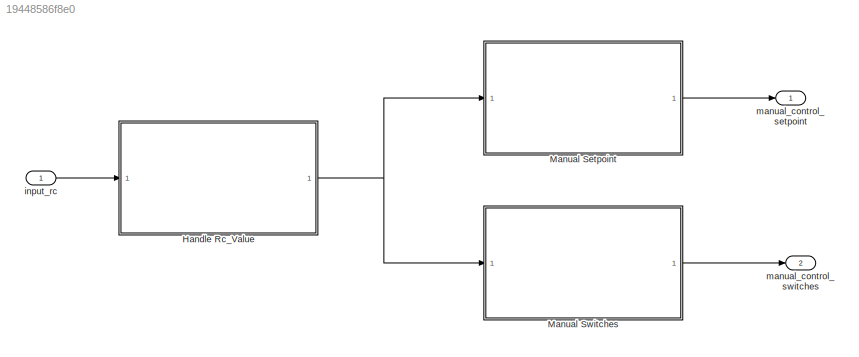
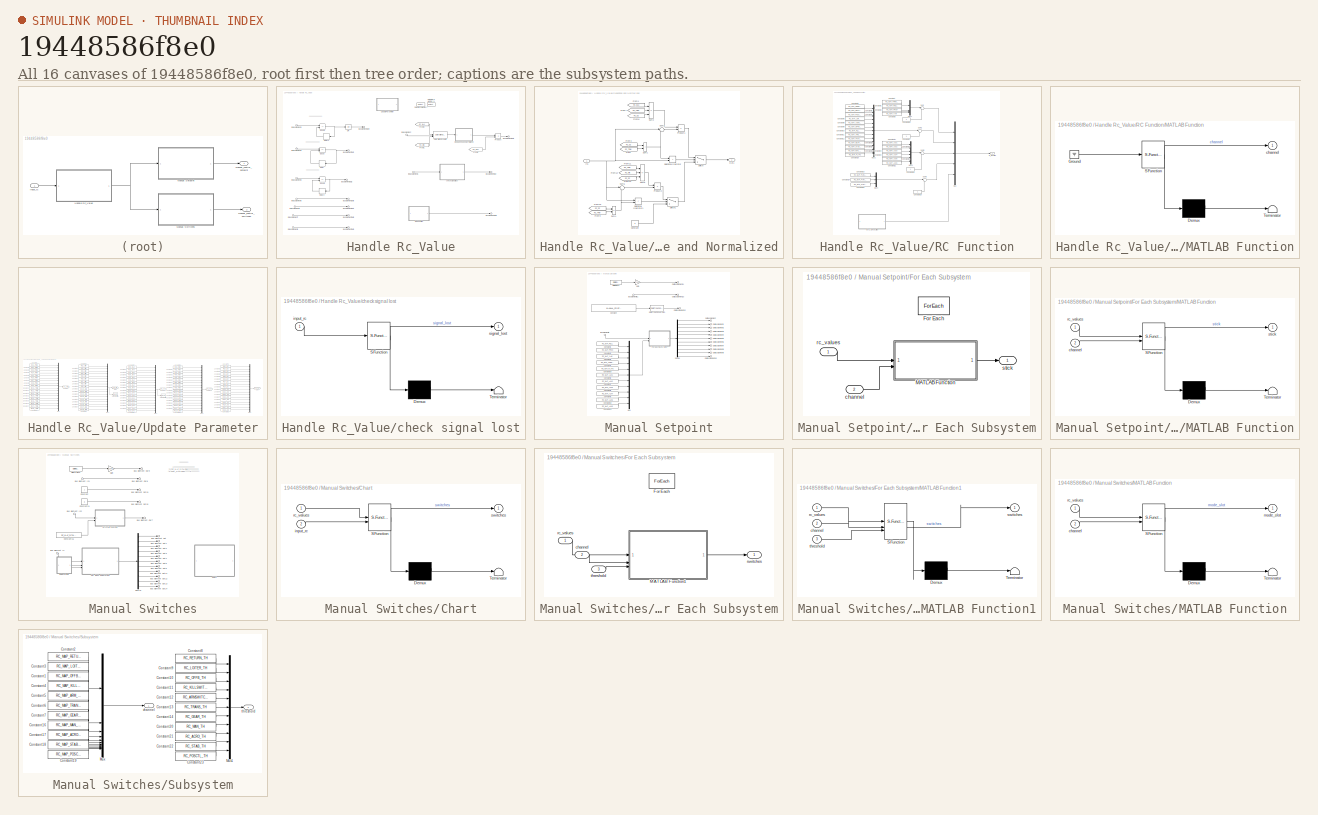
[diagram: thumbnail index - all 16 canvases of the model, root first then tree order]
MODEL slx_19448586f8e0
KIND model
CONFIG AbsTol = auto
CONFIG EnableMultiTasking = off
CONFIG FixedStep = 0.005
CONFIG MaxStep = auto
CONFIG MinStep = auto
CONFIG RelTol = 1e-3
CONFIG SampleTimeConstraint = Unconstrained
CONFIG SolverName = FixedStepAuto
CONFIG StartTime = 0.0
CONFIG StopTime = 10.0
BLOCK [SubSystem] Handle Rc_Value
BLOCK [Outport] Handle Rc_Value/Bus Element Out
BLOCK [Outport] Handle Rc_Value/Bus Element Out1
BLOCK [Outport] Handle Rc_Value/Bus Element Out2
BLOCK [Outport] Handle Rc_Value/Bus Element Out3
BLOCK [Outport] Handle Rc_Value/Bus Element Out4
BLOCK [Outport] Handle Rc_Value/Bus Element Out5
BLOCK [Outport] Handle Rc_Value/Bus Element Out6
BLOCK [Outport] Handle Rc_Value/Bus Element Out7
BLOCK [Outport] Handle Rc_Value/Bus Element Out8
BLOCK [Outport] Handle Rc_Value/Bus Element Out9
BLOCK [DataStoreMemory] Handle Rc_Value/Data Store Memory
  DataStoreName = RC_MAX
  Dimensions = 18
  OutDataTypeStr = single
  ShowAdditionalParam = off
  SignalType = real
  WriteAfterWriteMsg = warning
BLOCK [DataStoreMemory] Handle Rc_Value/Data Store Memory1
  DataStoreName = RC_MIN
  Dimensions = 18
  OutDataTypeStr = single
  ShowAdditionalParam = off
  SignalType = real
  WriteAfterWriteMsg = warning
BLOCK [SubSystem] Handle Rc_Value/DeadZone and Normalized
BLOCK [Constant] Handle Rc_Value/DeadZone and Normalized/Constant
  OutDataTypeStr = single
  Value = 0
BLOCK [From] Handle Rc_Value/DeadZone and Normalized/From
  GotoTag = RC_TRIM
  TagVisibility = global
BLOCK [From] Handle Rc_Value/DeadZone and Normalized/From10
  GotoTag = RC_DZ
  TagVisibility = global
BLOCK [From] Handle Rc_Value/DeadZone and Normalized/From11
  GotoTag = RC_TRIM
  TagVisibility = global
BLOCK [From] Handle Rc_Value/DeadZone and Normalized/From12
  GotoTag = RC_MIN
  TagVisibility = global
BLOCK [From] Handle Rc_Value/DeadZone and Normalized/From13
  GotoTag = RC_DZ
  TagVisibility = global
BLOCK [From] Handle Rc_Value/DeadZone and Normalized/From3
  GotoTag = RC_DZ
  TagVisibility = global
BLOCK [From] Handle Rc_Value/DeadZone and Normalized/From4
  GotoTag = RC_MAX
  TagVisibility = global
BLOCK [From] Handle Rc_Value/DeadZone and Normalized/From7
  GotoTag = RC_TRIM
  TagVisibility = global
BLOCK [From] Handle Rc_Value/DeadZone and Normalized/From8
  GotoTag = RC_DZ
  TagVisibility = global
BLOCK [From] Handle Rc_Value/DeadZone and Normalized/From9
  GotoTag = RC_TRIM
  TagVisibility = global
BLOCK [Inport] Handle Rc_Value/DeadZone and Normalized/In1
BLOCK [Outport] Handle Rc_Value/DeadZone and Normalized/Out1
BLOCK [Product] Handle Rc_Value/DeadZone and Normalized/Product1
  Inputs = /*
BLOCK [Product] Handle Rc_Value/DeadZone and Normalized/Product2
  Inputs = /*
BLOCK [RelationalOperator] Handle Rc_Value/DeadZone and Normalized/Relational Operator
  InputSameDT = off
  Operator = <
  OutDataTypeStr = boolean
  RndMeth = Simplest
BLOCK [RelationalOperator] Handle Rc_Value/DeadZone and Normalized/Relational Operator1
  InputSameDT = off
  Operator = <
  OutDataTypeStr = boolean
  RndMeth = Simplest
BLOCK [Sum] Handle Rc_Value/DeadZone and Normalized/Sum1
  IconShape = rectangular
  Inputs = 2
BLOCK [Sum] Handle Rc_Value/DeadZone and Normalized/Sum2
  Inputs = |+-
BLOCK [Sum] Handle Rc_Value/DeadZone and Normalized/Sum3
  IconShape = rectangular
  Inputs = +--
BLOCK [Sum] Handle Rc_Value/DeadZone and Normalized/Sum4
  IconShape = rectangular
  Inputs = -+
BLOCK [Sum] Handle Rc_Value/DeadZone and Normalized/Sum5
  Inputs = |+-
BLOCK [Sum] Handle Rc_Value/DeadZone and Normalized/Sum6
  IconShape = rectangular
  Inputs = +--
BLOCK [Switch] Handle Rc_Value/DeadZone and Normalized/Switch
  Criteria = u2 > Threshold
  InputSameDT = off
  SaturateOnIntegerOverflow = off
BLOCK [Switch] Handle Rc_Value/DeadZone and Normalized/Switch1
  Criteria = u2 > Threshold
  InputSameDT = off
  SaturateOnIntegerOverflow = off
BLOCK [Delay] Handle Rc_Value/Delay
  DelayLength = 1
  InputPortMap = u0
  NameLocation = top
BLOCK [Delay] Handle Rc_Value/Delay1
  DelayLength = 1
  InputPortMap = u0
  NameLocation = top
BLOCK [Delay] Handle Rc_Value/Delay2
  DelayLength = 1
  InputPortMap = u0
  NameLocation = top
BLOCK [RelationalOperator] Handle Rc_Value/Equal
  InputSameDT = off
  Operator = ==
  OutDataTypeStr = boolean
  RndMeth = Simplest
BLOCK [RelationalOperator] Handle Rc_Value/Equal1
  InputSameDT = off
  Operator = ==
  OutDataTypeStr = boolean
  RndMeth = Simplest
BLOCK [RelationalOperator] Handle Rc_Value/Equal2
  InputSameDT = off
  Operator = ~=
  OutDataTypeStr = boolean
  RndMeth = Simplest
BLOCK [From] Handle Rc_Value/From1
  GotoTag = RC_MIN
  TagVisibility = global
BLOCK [From] Handle Rc_Value/From2
  GotoTag = RC_MAX
  TagVisibility = global
BLOCK [From] Handle Rc_Value/From5
  GotoTag = RC_REV
  TagVisibility = global
BLOCK [Inport] Handle Rc_Value/In Bus Element
BLOCK [Inport] Handle Rc_Value/In Bus Element1
BLOCK [Inport] Handle Rc_Value/In Bus Element2
BLOCK [Inport] Handle Rc_Value/In Bus Element3
BLOCK [Inport] Handle Rc_Value/In Bus Element4
BLOCK [Inport] Handle Rc_Value/In Bus Element5
BLOCK [Inport] Handle Rc_Value/In Bus Element6
BLOCK [Inport] Handle Rc_Value/In Bus Element7
BLOCK [Inport] Handle Rc_Value/In Bus Element8
BLOCK [Logic] Handle Rc_Value/OR
  AllPortsSameDT = off
  IconShape = distinctive
  Inputs = 1
  Operator = OR
  OutDataTypeStr = boolean
BLOCK [Product] Handle Rc_Value/Product
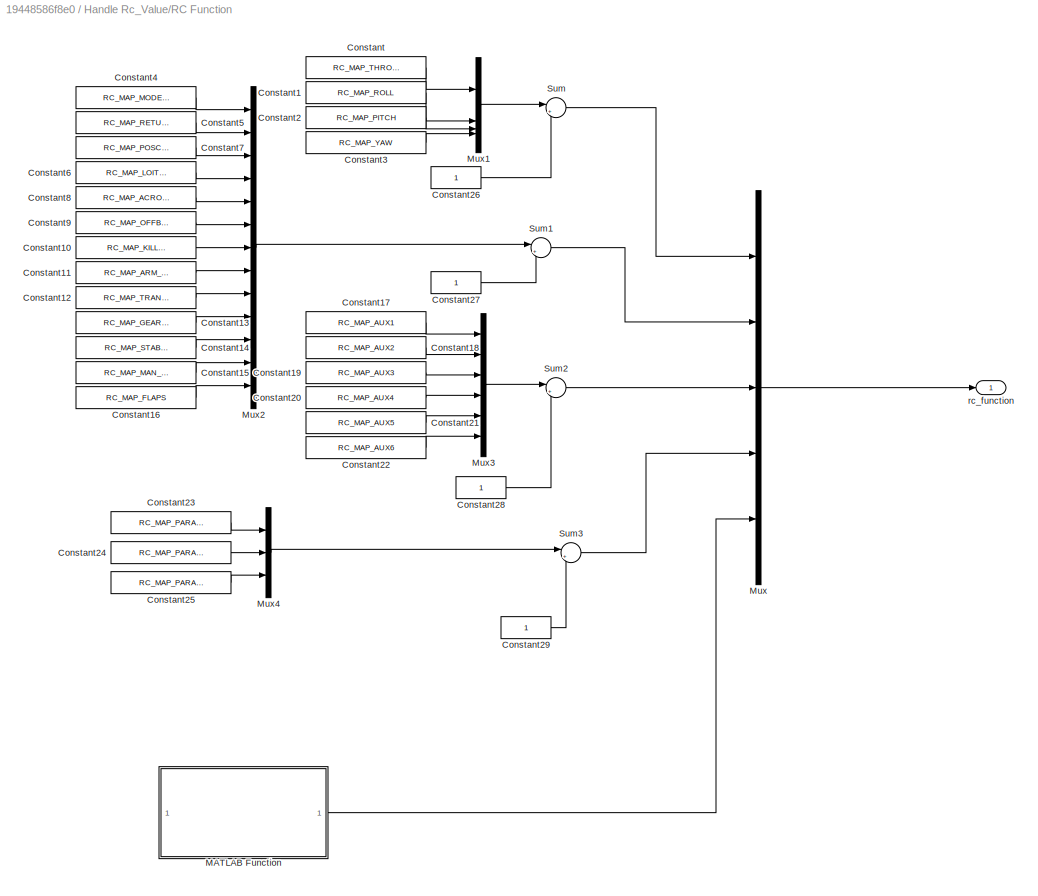
BLOCK [SubSystem] Handle Rc_Value/RC Function
BLOCK [Constant] Handle Rc_Value/RC Function/Constant
  Value = RC_MAP_THROTTLE
BLOCK [Constant] Handle Rc_Value/RC Function/Constant1
  Value = RC_MAP_ROLL
BLOCK [Constant] Handle Rc_Value/RC Function/Constant10
  Value = RC_MAP_KILL_SW
BLOCK [Constant] Handle Rc_Value/RC Function/Constant11
  Value = RC_MAP_ARM_SW
BLOCK [Constant] Handle Rc_Value/RC Function/Constant12
  Value = RC_MAP_TRANS_SW
BLOCK [Constant] Handle Rc_Value/RC Function/Constant13
  Value = RC_MAP_GEAR_SW
BLOCK [Constant] Handle Rc_Value/RC Function/Constant14
  Value = RC_MAP_STAB_SW
BLOCK [Constant] Handle Rc_Value/RC Function/Constant15
  Value = RC_MAP_MAN_SW
BLOCK [Constant] Handle Rc_Value/RC Function/Constant16
  Value = RC_MAP_FLAPS
BLOCK [Constant] Handle Rc_Value/RC Function/Constant17
  Value = RC_MAP_AUX1
BLOCK [Constant] Handle Rc_Value/RC Function/Constant18
  Value = RC_MAP_AUX2
BLOCK [Constant] Handle Rc_Value/RC Function/Constant19
  Value = RC_MAP_AUX3
BLOCK [Constant] Handle Rc_Value/RC Function/Constant2
  Value = RC_MAP_PITCH
BLOCK [Constant] Handle Rc_Value/RC Function/Constant20
  Value = RC_MAP_AUX4
BLOCK [Constant] Handle Rc_Value/RC Function/Constant21
  Value = RC_MAP_AUX5
BLOCK [Constant] Handle Rc_Value/RC Function/Constant22
  Value = RC_MAP_AUX6
BLOCK [Constant] Handle Rc_Value/RC Function/Constant23
  Value = RC_MAP_PARAM1
BLOCK [Constant] Handle Rc_Value/RC Function/Constant24
  Value = RC_MAP_PARAM2
BLOCK [Constant] Handle Rc_Value/RC Function/Constant25
  Value = RC_MAP_PARAM3
BLOCK [Constant] Handle Rc_Value/RC Function/Constant26
  OutDataTypeStr = int8
BLOCK [Constant] Handle Rc_Value/RC Function/Constant27
  OutDataTypeStr = int8
BLOCK [Constant] Handle Rc_Value/RC Function/Constant28
  OutDataTypeStr = int8
BLOCK [Constant] Handle Rc_Value/RC Function/Constant29
  OutDataTypeStr = int8
BLOCK [Constant] Handle Rc_Value/RC Function/Constant3
  Value = RC_MAP_YAW
BLOCK [Constant] Handle Rc_Value/RC Function/Constant4
  Value = RC_MAP_MODE_SW
BLOCK [Constant] Handle Rc_Value/RC Function/Constant5
  Value = RC_MAP_RETURN_SW
BLOCK [Constant] Handle Rc_Value/RC Function/Constant6
  Value = RC_MAP_LOITER_SW
BLOCK [Constant] Handle Rc_Value/RC Function/Constant7
  Value = RC_MAP_POSCTL_SW
BLOCK [Constant] Handle Rc_Value/RC Function/Constant8
  Value = RC_MAP_ACRO_SW
BLOCK [Constant] Handle Rc_Value/RC Function/Constant9
  Value = RC_MAP_OFFB_SW
BLOCK [SubSystem] Handle Rc_Value/RC Function/MATLAB Function
  Commented = on
  ErrorFcn = Stateflow.Translate.translate
  PermitHierarchicalResolution = ExplicitOnly
  SFBlockType = MATLAB Function
  TreatAsAtomicUnit = on
BLOCK [Demux] Handle Rc_Value/RC Function/MATLAB Function/ Demux 
  Outputs = 1
BLOCK [Ground] Handle Rc_Value/RC Function/MATLAB Function/ Ground 
BLOCK [S-Function] Handle Rc_Value/RC Function/MATLAB Function/ SFunction 
  EnableBusSupport = on
  FunctionName = sf_sfun
  Parameters = RC_MAP_FLTM_BTN
  PortCounts = [1 2]
  SFcnIsStateOwnerBlock = off
  SFunctionDeploymentMode = off
  Tag = Stateflow S-Function 4
BLOCK [Terminator] Handle Rc_Value/RC Function/MATLAB Function/ Terminator 
BLOCK [Outport] Handle Rc_Value/RC Function/MATLAB Function/channel
BLOCK [Mux] Handle Rc_Value/RC Function/Mux
  DisplayOption = bar
  Inputs = 5
BLOCK [Mux] Handle Rc_Value/RC Function/Mux1
  DisplayOption = bar
BLOCK [Mux] Handle Rc_Value/RC Function/Mux2
  DisplayOption = bar
  Inputs = 13
BLOCK [Mux] Handle Rc_Value/RC Function/Mux3
  DisplayOption = bar
  Inputs = 6
BLOCK [Mux] Handle Rc_Value/RC Function/Mux4
  DisplayOption = bar
  Inputs = 3
BLOCK [Sum] Handle Rc_Value/RC Function/Sum
  Inputs = |+-
  OutDataTypeStr = int8
BLOCK [Sum] Handle Rc_Value/RC Function/Sum1
  Inputs = |+-
  OutDataTypeStr = int8
BLOCK [Sum] Handle Rc_Value/RC Function/Sum2
  Inputs = |+-
  OutDataTypeStr = int8
BLOCK [Sum] Handle Rc_Value/RC Function/Sum3
  Inputs = |+-
  OutDataTypeStr = int8
BLOCK [Outport] Handle Rc_Value/RC Function/rc_function
BLOCK [Reference] Handle Rc_Value/Saturation Dynamic  REF=simulink/Discontinuities/Saturation
Dynamic
  SourceBlock = simulink/Discontinuities/Saturation\nDynamic
  SourceType = Saturation Dynamic
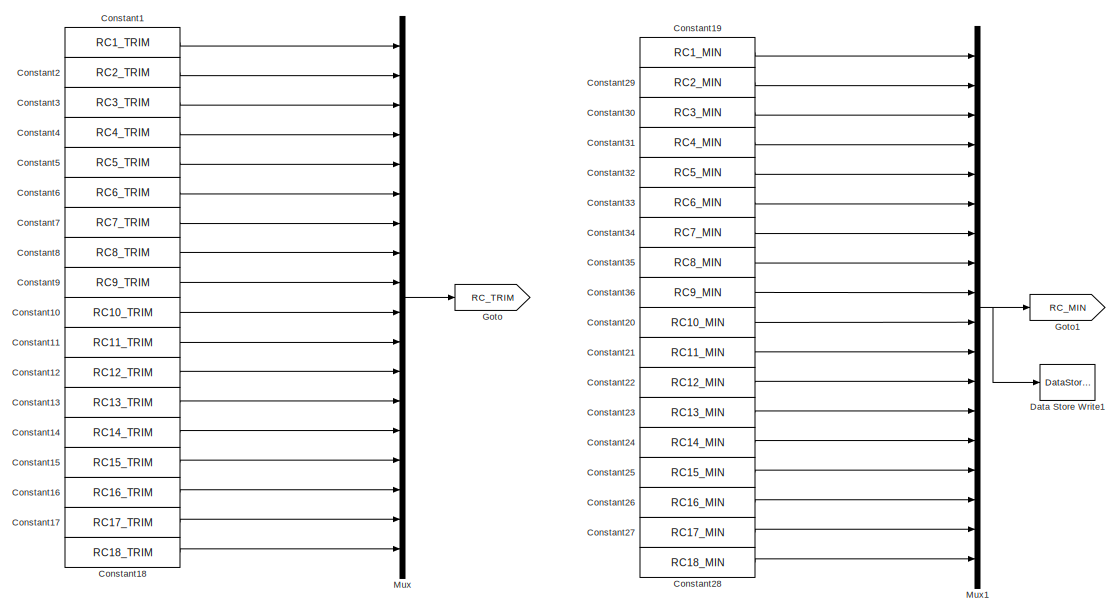
[diagram: Handle Rc_Value/Update Parameter - part 1/3, left side, full height]
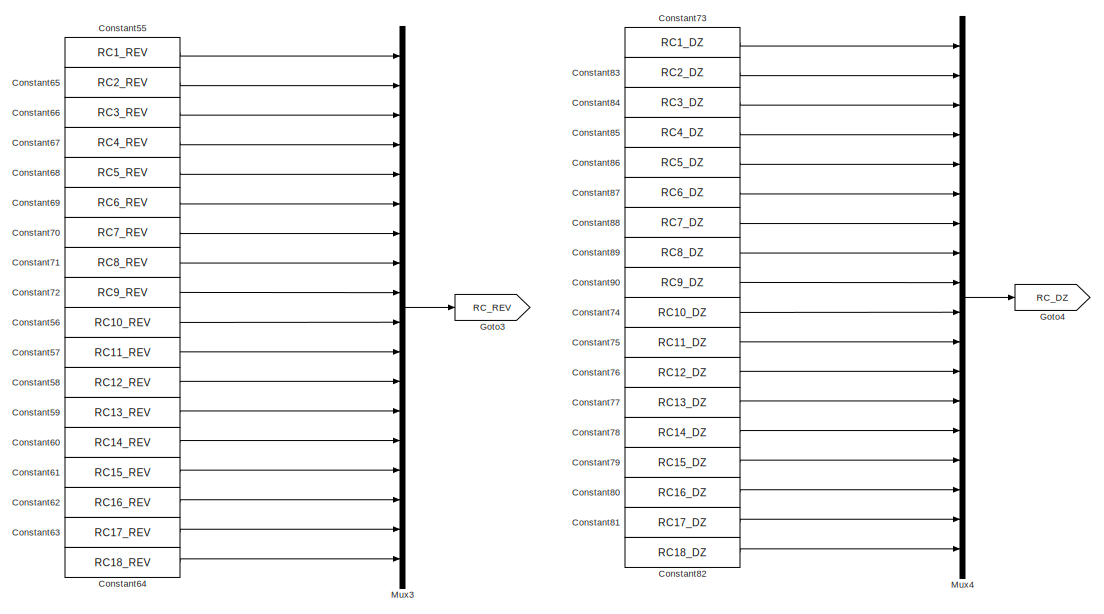
[diagram: Handle Rc_Value/Update Parameter - part 2/3, right side, full height]
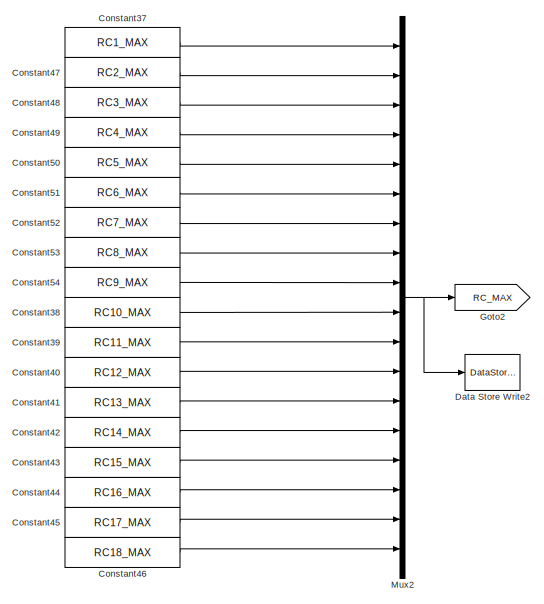
[diagram: Handle Rc_Value/Update Parameter - part 3/3, center side, full height]
BLOCK [SubSystem] Handle Rc_Value/Update Parameter
BLOCK [Constant] Handle Rc_Value/Update Parameter/Constant1
  Value = RC1_TRIM
BLOCK [Constant] Handle Rc_Value/Update Parameter/Constant10
  Value = RC10_TRIM
BLOCK [Constant] Handle Rc_Value/Update Parameter/Constant11
  Value = RC11_TRIM
BLOCK [Constant] Handle Rc_Value/Update Parameter/Constant12
  Value = RC12_TRIM
BLOCK [Constant] Handle Rc_Value/Update Parameter/Constant13
  Value = RC13_TRIM
BLOCK [Constant] Handle Rc_Value/Update Parameter/Constant14
  Value = RC14_TRIM
BLOCK [Constant] Handle Rc_Value/Update Parameter/Constant15
  Value = RC15_TRIM
BLOCK [Constant] Handle Rc_Value/Update Parameter/Constant16
  Value = RC16_TRIM
BLOCK [Constant] Handle Rc_Value/Update Parameter/Constant17
  Value = RC17_TRIM
BLOCK [Constant] Handle Rc_Value/Update Parameter/Constant18
  Value = RC18_TRIM
BLOCK [Constant] Handle Rc_Value/Update Parameter/Constant19
  Value = RC1_MIN
BLOCK [Constant] Handle Rc_Value/Update Parameter/Constant2
  Value = RC2_TRIM
BLOCK [Constant] Handle Rc_Value/Update Parameter/Constant20
  Value = RC10_MIN
BLOCK [Constant] Handle Rc_Value/Update Parameter/Constant21
  Value = RC11_MIN
BLOCK [Constant] Handle Rc_Value/Update Parameter/Constant22
  Value = RC12_MIN
BLOCK [Constant] Handle Rc_Value/Update Parameter/Constant23
  Value = RC13_MIN
BLOCK [Constant] Handle Rc_Value/Update Parameter/Constant24
  Value = RC14_MIN
BLOCK [Constant] Handle Rc_Value/Update Parameter/Constant25
  Value = RC15_MIN
BLOCK [Constant] Handle Rc_Value/Update Parameter/Constant26
  Value = RC16_MIN
BLOCK [Constant] Handle Rc_Value/Update Parameter/Constant27
  Value = RC17_MIN
BLOCK [Constant] Handle Rc_Value/Update Parameter/Constant28
  Value = RC18_MIN
BLOCK [Constant] Handle Rc_Value/Update Parameter/Constant29
  Value = RC2_MIN
BLOCK [Constant] Handle Rc_Value/Update Parameter/Constant3
  Value = RC3_TRIM
BLOCK [Constant] Handle Rc_Value/Update Parameter/Constant30
  Value = RC3_MIN
BLOCK [Constant] Handle Rc_Value/Update Parameter/Constant31
  Value = RC4_MIN
BLOCK [Constant] Handle Rc_Value/Update Parameter/Constant32
  Value = RC5_MIN
BLOCK [Constant] Handle Rc_Value/Update Parameter/Constant33
  Value = RC6_MIN
BLOCK [Constant] Handle Rc_Value/Update Parameter/Constant34
  Value = RC7_MIN
BLOCK [Constant] Handle Rc_Value/Update Parameter/Constant35
  Value = RC8_MIN
BLOCK [Constant] Handle Rc_Value/Update Parameter/Constant36
  Value = RC9_MIN
BLOCK [Constant] Handle Rc_Value/Update Parameter/Constant37
  Value = RC1_MAX
BLOCK [Constant] Handle Rc_Value/Update Parameter/Constant38
  Value = RC10_MAX
BLOCK [Constant] Handle Rc_Value/Update Parameter/Constant39
  Value = RC11_MAX
BLOCK [Constant] Handle Rc_Value/Update Parameter/Constant4
  Value = RC4_TRIM
BLOCK [Constant] Handle Rc_Value/Update Parameter/Constant40
  Value = RC12_MAX
BLOCK [Constant] Handle Rc_Value/Update Parameter/Constant41
  Value = RC13_MAX
BLOCK [Constant] Handle Rc_Value/Update Parameter/Constant42
  Value = RC14_MAX
BLOCK [Constant] Handle Rc_Value/Update Parameter/Constant43
  Value = RC15_MAX
BLOCK [Constant] Handle Rc_Value/Update Parameter/Constant44
  Value = RC16_MAX
BLOCK [Constant] Handle Rc_Value/Update Parameter/Constant45
  Value = RC17_MAX
BLOCK [Constant] Handle Rc_Value/Update Parameter/Constant46
  Value = RC18_MAX
BLOCK [Constant] Handle Rc_Value/Update Parameter/Constant47
  Value = RC2_MAX
BLOCK [Constant] Handle Rc_Value/Update Parameter/Constant48
  Value = RC3_MAX
BLOCK [Constant] Handle Rc_Value/Update Parameter/Constant49
  Value = RC4_MAX
BLOCK [Constant] Handle Rc_Value/Update Parameter/Constant5
  Value = RC5_TRIM
BLOCK [Constant] Handle Rc_Value/Update Parameter/Constant50
  Value = RC5_MAX
BLOCK [Constant] Handle Rc_Value/Update Parameter/Constant51
  Value = RC6_MAX
BLOCK [Constant] Handle Rc_Value/Update Parameter/Constant52
  Value = RC7_MAX
BLOCK [Constant] Handle Rc_Value/Update Parameter/Constant53
  Value = RC8_MAX
BLOCK [Constant] Handle Rc_Value/Update Parameter/Constant54
  Value = RC9_MAX
BLOCK [Constant] Handle Rc_Value/Update Parameter/Constant55
  Value = RC1_REV
BLOCK [Constant] Handle Rc_Value/Update Parameter/Constant56
  Value = RC10_REV
BLOCK [Constant] Handle Rc_Value/Update Parameter/Constant57
  Value = RC11_REV
BLOCK [Constant] Handle Rc_Value/Update Parameter/Constant58
  Value = RC12_REV
BLOCK [Constant] Handle Rc_Value/Update Parameter/Constant59
  Value = RC13_REV
BLOCK [Constant] Handle Rc_Value/Update Parameter/Constant6
  Value = RC6_TRIM
BLOCK [Constant] Handle Rc_Value/Update Parameter/Constant60
  Value = RC14_REV
BLOCK [Constant] Handle Rc_Value/Update Parameter/Constant61
  Value = RC15_REV
BLOCK [Constant] Handle Rc_Value/Update Parameter/Constant62
  Value = RC16_REV
BLOCK [Constant] Handle Rc_Value/Update Parameter/Constant63
  Value = RC17_REV
BLOCK [Constant] Handle Rc_Value/Update Parameter/Constant64
  Value = RC18_REV
BLOCK [Constant] Handle Rc_Value/Update Parameter/Constant65
  Value = RC2_REV
BLOCK [Constant] Handle Rc_Value/Update Parameter/Constant66
  Value = RC3_REV
BLOCK [Constant] Handle Rc_Value/Update Parameter/Constant67
  Value = RC4_REV
BLOCK [Constant] Handle Rc_Value/Update Parameter/Constant68
  Value = RC5_REV
BLOCK [Constant] Handle Rc_Value/Update Parameter/Constant69
  Value = RC6_REV
BLOCK [Constant] Handle Rc_Value/Update Parameter/Constant7
  Value = RC7_TRIM
BLOCK [Constant] Handle Rc_Value/Update Parameter/Constant70
  Value = RC7_REV
BLOCK [Constant] Handle Rc_Value/Update Parameter/Constant71
  Value = RC8_REV
BLOCK [Constant] Handle Rc_Value/Update Parameter/Constant72
  Value = RC9_REV
BLOCK [Constant] Handle Rc_Value/Update Parameter/Constant73
  Value = RC1_DZ
BLOCK [Constant] Handle Rc_Value/Update Parameter/Constant74
  Value = RC10_DZ
BLOCK [Constant] Handle Rc_Value/Update Parameter/Constant75
  Value = RC11_DZ
BLOCK [Constant] Handle Rc_Value/Update Parameter/Constant76
  Value = RC12_DZ
BLOCK [Constant] Handle Rc_Value/Update Parameter/Constant77
  Value = RC13_DZ
BLOCK [Constant] Handle Rc_Value/Update Parameter/Constant78
  Value = RC14_DZ
BLOCK [Constant] Handle Rc_Value/Update Parameter/Constant79
  Value = RC15_DZ
BLOCK [Constant] Handle Rc_Value/Update Parameter/Constant8
  Value = RC8_TRIM
BLOCK [Constant] Handle Rc_Value/Update Parameter/Constant80
  Value = RC16_DZ
BLOCK [Constant] Handle Rc_Value/Update Parameter/Constant81
  Value = RC17_DZ
BLOCK [Constant] Handle Rc_Value/Update Parameter/Constant82
  Value = RC18_DZ
BLOCK [Constant] Handle Rc_Value/Update Parameter/Constant83
  Value = RC2_DZ
BLOCK [Constant] Handle Rc_Value/Update Parameter/Constant84
  Value = RC3_DZ
BLOCK [Constant] Handle Rc_Value/Update Parameter/Constant85
  Value = RC4_DZ
BLOCK [Constant] Handle Rc_Value/Update Parameter/Constant86
  Value = RC5_DZ
BLOCK [Constant] Handle Rc_Value/Update Parameter/Constant87
  Value = RC6_DZ
BLOCK [Constant] Handle Rc_Value/Update Parameter/Constant88
  Value = RC7_DZ
BLOCK [Constant] Handle Rc_Value/Update Parameter/Constant89
  Value = RC8_DZ
BLOCK [Constant] Handle Rc_Value/Update Parameter/Constant9
  Value = RC9_TRIM
BLOCK [Constant] Handle Rc_Value/Update Parameter/Constant90
  Value = RC9_DZ
BLOCK [DataStoreWrite] Handle Rc_Value/Update Parameter/Data Store Write1
  DataStoreName = RC_MIN
  IndexOptions = Index vector (dialog)
  Indices = 1
  OutputSizes = 1
BLOCK [DataStoreWrite] Handle Rc_Value/Update Parameter/Data Store Write2
  DataStoreName = RC_MAX
  IndexOptions = Index vector (dialog)
  Indices = 1
  OutputSizes = 1
BLOCK [Goto] Handle Rc_Value/Update Parameter/Goto
  GotoTag = RC_TRIM
  TagVisibility = global
BLOCK [Goto] Handle Rc_Value/Update Parameter/Goto1
  GotoTag = RC_MIN
  TagVisibility = global
BLOCK [Goto] Handle Rc_Value/Update Parameter/Goto2
  GotoTag = RC_MAX
  TagVisibility = global
BLOCK [Goto] Handle Rc_Value/Update Parameter/Goto3
  GotoTag = RC_REV
  TagVisibility = global
BLOCK [Goto] Handle Rc_Value/Update Parameter/Goto4
  GotoTag = RC_DZ
  TagVisibility = global
BLOCK [Mux] Handle Rc_Value/Update Parameter/Mux
  DisplayOption = bar
  Inputs = 18
BLOCK [Mux] Handle Rc_Value/Update Parameter/Mux1
  DisplayOption = bar
  Inputs = 18
BLOCK [Mux] Handle Rc_Value/Update Parameter/Mux2
  DisplayOption = bar
  Inputs = 18
BLOCK [Mux] Handle Rc_Value/Update Parameter/Mux3
  DisplayOption = bar
  Inputs = 18
BLOCK [Mux] Handle Rc_Value/Update Parameter/Mux4
  DisplayOption = bar
  Inputs = 18
BLOCK [SubSystem] Handle Rc_Value/check signal lost
  ErrorFcn = Stateflow.Translate.translate
  PermitHierarchicalResolution = ExplicitOnly
  SFBlockType = Chart
  TreatAsAtomicUnit = on
BLOCK [Demux] Handle Rc_Value/check signal lost/ Demux 
  Outputs = 1
BLOCK [S-Function] Handle Rc_Value/check signal lost/ SFunction 
  EnableBusSupport = on
  FunctionName = sf_sfun
  Parameters = RC_FAILS_THR,RC_MAP_FAILSAFE
  PortCounts = [1 2]
  SFcnIsStateOwnerBlock = off
  SFunctionDeploymentMode = off
  Tag = Stateflow S-Function 3
BLOCK [Terminator] Handle Rc_Value/check signal lost/ Terminator 
BLOCK [Inport] Handle Rc_Value/check signal lost/input_rc
BLOCK [Outport] Handle Rc_Value/check signal lost/signal_lost
BLOCK [SubSystem] Manual Setpoint
BLOCK [Inport] Manual Setpoint/Bus Element In
BLOCK [Inport] Manual Setpoint/Bus Element In1
BLOCK [Constant] Manual Setpoint/Constant
  Value = MANUAL_CONTROL_SETPOINT.SOURCE_RC
BLOCK [Constant] Manual Setpoint/Constant1
  Value = RC_MAP_ROLL
BLOCK [Constant] Manual Setpoint/Constant10
  Value = RC_MAP_AUX5
BLOCK [Constant] Manual Setpoint/Constant14
  Value = RC_MAP_AUX6
BLOCK [Constant] Manual Setpoint/Constant16
  Value = RC_MAP_FLAPS
BLOCK [Constant] Manual Setpoint/Constant2
  Value = RC_MAP_PITCH
BLOCK [Constant] Manual Setpoint/Constant3
  Value = RC_MAP_YAW
BLOCK [Constant] Manual Setpoint/Constant4
  Value = RC_MAP_THROTTLE
BLOCK [Constant] Manual Setpoint/Constant6
  Value = RC_MAP_AUX1
BLOCK [Constant] Manual Setpoint/Constant7
  Value = RC_MAP_AUX2
BLOCK [Constant] Manual Setpoint/Constant8
  Value = RC_MAP_AUX3
BLOCK [Constant] Manual Setpoint/Constant9
  Value = RC_MAP_AUX4
BLOCK [DataTypeConversion] Manual Setpoint/Data Type Conversion
  RndMeth = Floor
  SaturateOnIntegerOverflow = off
BLOCK [Demux] Manual Setpoint/Demux
  Outputs = 11.
BLOCK [DigitalClock] Manual Setpoint/Digital Clock
  SampleTime = 0.005
BLOCK [SubSystem] Manual Setpoint/For Each Subsystem
  TreatAsAtomicUnit = on
BLOCK [ForEach] Manual Setpoint/For Each Subsystem/For Each
  DisableCoverage = on
BLOCK [SubSystem] Manual Setpoint/For Each Subsystem/MATLAB Function
  ErrorFcn = Stateflow.Translate.translate
  PermitHierarchicalResolution = ExplicitOnly
  SFBlockType = MATLAB Function
  TreatAsAtomicUnit = on
BLOCK [Demux] Manual Setpoint/For Each Subsystem/MATLAB Function/ Demux 
  Outputs = 1
BLOCK [S-Function] Manual Setpoint/For Each Subsystem/MATLAB Function/ SFunction 
  EnableBusSupport = on
  FunctionName = sf_sfun
  PortCounts = [2 2]
  SFcnIsStateOwnerBlock = off
  SFunctionDeploymentMode = off
  Tag = Stateflow S-Function 7
BLOCK [Terminator] Manual Setpoint/For Each Subsystem/MATLAB Function/ Terminator 
BLOCK [Inport] Manual Setpoint/For Each Subsystem/MATLAB Function/channel
  Port = 2
BLOCK [Inport] Manual Setpoint/For Each Subsystem/MATLAB Function/rc_values
BLOCK [Outport] Manual Setpoint/For Each Subsystem/MATLAB Function/stick
BLOCK [Inport] Manual Setpoint/For Each Subsystem/channel
  Partition = on
  PartitionDimension = 1
  PartitionOffset = 0
  PartitionWidth = 1
  Port = 2
BLOCK [Inport] Manual Setpoint/For Each Subsystem/rc_values
BLOCK [Outport] Manual Setpoint/For Each Subsystem/stick
  ConcatenationDimension = 1
BLOCK [Gain] Manual Setpoint/Gain
  Gain = 10e6
  OutDataTypeStr = uint64
BLOCK [Mux] Manual Setpoint/Mux
  DisplayOption = bar
  Inputs = 11
BLOCK [Outport] Manual Setpoint/Out Bus Element
BLOCK [Outport] Manual Setpoint/Out Bus Element1
BLOCK [Outport] Manual Setpoint/Out Bus Element10
BLOCK [Outport] Manual Setpoint/Out Bus Element11
BLOCK [Outport] Manual Setpoint/Out Bus Element12
BLOCK [Outport] Manual Setpoint/Out Bus Element13
BLOCK [Outport] Manual Setpoint/Out Bus Element2
BLOCK [Outport] Manual Setpoint/Out Bus Element3
BLOCK [Outport] Manual Setpoint/Out Bus Element4
BLOCK [Outport] Manual Setpoint/Out Bus Element5
BLOCK [Outport] Manual Setpoint/Out Bus Element6
BLOCK [Outport] Manual Setpoint/Out Bus Element7
BLOCK [Outport] Manual Setpoint/Out Bus Element8
BLOCK [Outport] Manual Setpoint/Out Bus Element9
BLOCK [SubSystem] Manual Switches
BLOCK [Inport] Manual Switches/Bus Element In
BLOCK [Inport] Manual Switches/Bus Element In1
BLOCK [Inport] Manual Switches/Bus Element In2
BLOCK [Outport] Manual Switches/Bus Element Out
BLOCK [Outport] Manual Switches/Bus Element Out1
BLOCK [Outport] Manual Switches/Bus Element Out10
BLOCK [Outport] Manual Switches/Bus Element Out11
BLOCK [Outport] Manual Switches/Bus Element Out12
BLOCK [Outport] Manual Switches/Bus Element Out13
BLOCK [Outport] Manual Switches/Bus Element Out14
BLOCK [Outport] Manual Switches/Bus Element Out15
BLOCK [Outport] Manual Switches/Bus Element Out2
BLOCK [Outport] Manual Switches/Bus Element Out3
BLOCK [Outport] Manual Switches/Bus Element Out4
BLOCK [Outport] Manual Switches/Bus Element Out5
BLOCK [Outport] Manual Switches/Bus Element Out6
BLOCK [Outport] Manual Switches/Bus Element Out7
BLOCK [Outport] Manual Switches/Bus Element Out8
BLOCK [Outport] Manual Switches/Bus Element Out9
BLOCK [SubSystem] Manual Switches/Chart
  Commented = on
  ErrorFcn = Stateflow.Translate.translate
  PermitHierarchicalResolution = ExplicitOnly
  SFBlockType = Chart
  TreatAsAtomicUnit = on
BLOCK [Demux] Manual Switches/Chart/ Demux 
  Outputs = 1
BLOCK [S-Function] Manual Switches/Chart/ SFunction 
  EnableBusSupport = on
  FunctionName = sf_sfun
  Parameters = RC_ACRO_TH,RC_ARMSWITCH_TH,RC_ASSIST_TH,RC_AUTO_TH,RC_GEAR_TH,RC_KILLSWITCH_TH,RC_LOITER_TH,RC_MAN_TH,RC_MAP_ACRO_SW,RC_MAP_ARM_SW,RC_MAP_FLTMODE,RC_MAP_FLTM_BTN,RC_MAP_GEAR_SW,RC_MAP_KILL_SW,RC_MAP_LOITER_SW,RC_MAP_MAN_SW,RC_MAP_MODE_SW,RC_MAP_OFFB_SW,RC_MAP_POSCTL_SW,RC_MAP_RETURN_SW,RC_MAP_STAB_SW,RC_MAP_TRANS_SW,RC_OFFB_TH,RC_POSCTL_TH,RC_RETURN_TH,RC_STAB_TH,RC_TRANS_TH
  PortCounts = [2 2]
  SFcnIsStateOwnerBlock = off
  SFunctionDeploymentMode = off
  Tag = Stateflow S-Function 1
BLOCK [Terminator] Manual Switches/Chart/ Terminator 
BLOCK [Inport] Manual Switches/Chart/input_rc
  Port = 2
BLOCK [Inport] Manual Switches/Chart/rc_values
BLOCK [Outport] Manual Switches/Chart/switches
BLOCK [Constant] Manual Switches/Constant
  OutDataTypeStr = uint32
BLOCK [Constant] Manual Switches/Constant15
  OutDataTypeStr = single
  Value = RC_MAP_FLTMODE
BLOCK [Constant] Manual Switches/Constant24
  OutDataTypeStr = uint8
  Value = 0
BLOCK [Demux] Manual Switches/Demux
  Outputs = 11
BLOCK [DigitalClock] Manual Switches/Digital Clock
  SampleTime = 0.005
BLOCK [SubSystem] Manual Switches/For Each Subsystem
  TreatAsAtomicUnit = on
BLOCK [ForEach] Manual Switches/For Each Subsystem/For Each
  DisableCoverage = on
BLOCK [SubSystem] Manual Switches/For Each Subsystem/MATLAB Function1
  ErrorFcn = Stateflow.Translate.translate
  PermitHierarchicalResolution = ExplicitOnly
  SFBlockType = MATLAB Function
  TreatAsAtomicUnit = on
BLOCK [Demux] Manual Switches/For Each Subsystem/MATLAB Function1/ Demux 
  Outputs = 1
BLOCK [S-Function] Manual Switches/For Each Subsystem/MATLAB Function1/ SFunction 
  EnableBusSupport = on
  FunctionName = sf_sfun
  PortCounts = [3 2]
  SFcnIsStateOwnerBlock = off
  SFunctionDeploymentMode = off
  Tag = Stateflow S-Function 6
BLOCK [Terminator] Manual Switches/For Each Subsystem/MATLAB Function1/ Terminator 
BLOCK [Inport] Manual Switches/For Each Subsystem/MATLAB Function1/channel
  Port = 2
BLOCK [Inport] Manual Switches/For Each Subsystem/MATLAB Function1/rc_values
BLOCK [Outport] Manual Switches/For Each Subsystem/MATLAB Function1/switches
BLOCK [Inport] Manual Switches/For Each Subsystem/MATLAB Function1/threshold
  Port = 3
BLOCK [Inport] Manual Switches/For Each Subsystem/channel
  Partition = on
  PartitionDimension = 1
  PartitionOffset = 0
  PartitionWidth = 1
  Port = 2
BLOCK [Inport] Manual Switches/For Each Subsystem/rc_values
BLOCK [Outport] Manual Switches/For Each Subsystem/switches
  ConcatenationDimension = 1
BLOCK [Inport] Manual Switches/For Each Subsystem/threshold
  Partition = on
  PartitionDimension = 1
  PartitionOffset = 0
  PartitionWidth = 1
  Port = 3
BLOCK [Gain] Manual Switches/Gain
  Gain = 10e6
  OutDataTypeStr = uint64
BLOCK [SubSystem] Manual Switches/MATLAB Function
  ErrorFcn = Stateflow.Translate.translate
  PermitHierarchicalResolution = ExplicitOnly
  SFBlockType = MATLAB Function
  TreatAsAtomicUnit = on
BLOCK [Demux] Manual Switches/MATLAB Function/ Demux 
  Outputs = 1
BLOCK [S-Function] Manual Switches/MATLAB Function/ SFunction 
  EnableBusSupport = on
  FunctionName = sf_sfun
  PortCounts = [2 2]
  SFcnIsStateOwnerBlock = off
  SFunctionDeploymentMode = off
  Tag = Stateflow S-Function 5
BLOCK [Terminator] Manual Switches/MATLAB Function/ Terminator 
BLOCK [Inport] Manual Switches/MATLAB Function/channel
  Port = 2
BLOCK [Outport] Manual Switches/MATLAB Function/mode_slot
BLOCK [Inport] Manual Switches/MATLAB Function/rc_values
BLOCK [SubSystem] Manual Switches/Subsystem
BLOCK [Constant] Manual Switches/Subsystem/Constant1
  OutDataTypeStr = single
  Value = RC_MAP_OFFB_SW
BLOCK [Constant] Manual Switches/Subsystem/Constant10
  OutDataTypeStr = single
  Value = RC_OFFB_TH
BLOCK [Constant] Manual Switches/Subsystem/Constant11
  OutDataTypeStr = single
  Value = RC_KILLSWITCH_TH
BLOCK [Constant] Manual Switches/Subsystem/Constant12
  OutDataTypeStr = single
  Value = RC_ARMSWITCH_TH
BLOCK [Constant] Manual Switches/Subsystem/Constant13
  OutDataTypeStr = single
  Value = RC_TRANS_TH
BLOCK [Constant] Manual Switches/Subsystem/Constant14
  OutDataTypeStr = single
  Value = RC_GEAR_TH
BLOCK [Constant] Manual Switches/Subsystem/Constant16
  OutDataTypeStr = single
  Value = RC_MAP_MAN_SW
BLOCK [Constant] Manual Switches/Subsystem/Constant17
  OutDataTypeStr = single
  Value = RC_MAP_ACRO_SW
BLOCK [Constant] Manual Switches/Subsystem/Constant18
  OutDataTypeStr = single
  Value = RC_MAP_STAB_SW
BLOCK [Constant] Manual Switches/Subsystem/Constant19
  OutDataTypeStr = single
  Value = RC_MAP_POSCTL_SW
BLOCK [Constant] Manual Switches/Subsystem/Constant2
  OutDataTypeStr = single
  Value = RC_MAP_RETURN_SW
BLOCK [Constant] Manual Switches/Subsystem/Constant20
  OutDataTypeStr = single
  Value = RC_MAN_TH
BLOCK [Constant] Manual Switches/Subsystem/Constant21
  OutDataTypeStr = single
  Value = RC_ACRO_TH
BLOCK [Constant] Manual Switches/Subsystem/Constant22
  OutDataTypeStr = single
  Value = RC_STAB_TH
BLOCK [Constant] Manual Switches/Subsystem/Constant23
  OutDataTypeStr = single
  Value = RC_POSCTL_TH
BLOCK [Constant] Manual Switches/Subsystem/Constant3
  OutDataTypeStr = single
  Value = RC_MAP_LOITER_SW
BLOCK [Constant] Manual Switches/Subsystem/Constant4
  OutDataTypeStr = single
  Value = RC_MAP_KILL_SW
BLOCK [Constant] Manual Switches/Subsystem/Constant5
  OutDataTypeStr = single
  Value = RC_MAP_ARM_SW
BLOCK [Constant] Manual Switches/Subsystem/Constant6
  OutDataTypeStr = single
  Value = RC_MAP_TRANS_SW
BLOCK [Constant] Manual Switches/Subsystem/Constant7
  OutDataTypeStr = single
  Value = RC_MAP_GEAR_SW
BLOCK [Constant] Manual Switches/Subsystem/Constant8
  OutDataTypeStr = single
  Value = RC_RETURN_TH
BLOCK [Constant] Manual Switches/Subsystem/Constant9
  OutDataTypeStr = single
  Value = RC_LOITER_TH
BLOCK [Mux] Manual Switches/Subsystem/Mux
  DisplayOption = bar
  Inputs = 11.
BLOCK [Mux] Manual Switches/Subsystem/Mux1
  DisplayOption = bar
  Inputs = 11
BLOCK [Outport] Manual Switches/Subsystem/channel
BLOCK [Outport] Manual Switches/Subsystem/threshold
  Port = 2
BLOCK [Inport] input_rc
  OutDataTypeStr = Bus: input_rc_s
BLOCK [Outport] manual_control_setpoint
  OutDataTypeStr = Bus: manual_control_setpoint_s
BLOCK [Outport] manual_control_switches
  OutDataTypeStr = Bus: manual_control_switches_s
  Port = 2
ANNOTATION Handle Rc_Value: 检查遥控器的值是否发生改变
ANNOTATION Handle Rc_Value: 检查遥控器的来源是否发生改变
ANNOTATION Handle Rc_Value: 检查遥控器通道是否发生改变
ANNOTATION Manual Switches: 模式开关有三种形式 1、推荐使用，由一个多段拨杆通道切换控制模式 （1）RC_MAP_FLTMODE就是对应的多段拨杆通道 （2）COM_FLTMODEx表示拨到第x段对应的控制模式 2、不推荐使用，逻辑太复杂，用2个拨杆通道联合选择一个控制模式，一个通道指定大的模式，另一个通道指定小模式 （1）RC_MAP_MODE_SW是一个3段通道，分别对应MANUAL、ASSIST、AUTO三种大的控制模式 （2）RC_MAP_MAN_SW、RC_MAP_ACRO_SW、RC_MAP_STAB_SW、RC_MAP_POSCTL_SW是2段通道，分别对应MAN、ACRO、STAB、POSCTL等几个小控制模式 在大模式切到指定位置时： （1）MANUAL模式时，优先顺序RC_MAP_MAN_SW、RC_MAP_ACRO_SW、RC_MAP_STAB_SW （2）ASSIST模式时，先判断RC_MAP...<+171ch>
LINE Handle Rc_Value/DeadZone and Normalized/Constant:1 -> Handle Rc_Value/DeadZone and Normalized/Switch1:3
LINE Handle Rc_Value/DeadZone and Normalized/From10:1 -> Handle Rc_Value/DeadZone and Normalized/Sum4:1
LINE Handle Rc_Value/DeadZone and Normalized/From11:1 -> Handle Rc_Value/DeadZone and Normalized/Sum6:1
LINE Handle Rc_Value/DeadZone and Normalized/From12:1 -> Handle Rc_Value/DeadZone and Normalized/Sum6:2
LINE Handle Rc_Value/DeadZone and Normalized/From13:1 -> Handle Rc_Value/DeadZone and Normalized/Sum6:3
LINE Handle Rc_Value/DeadZone and Normalized/From3:1 -> Handle Rc_Value/DeadZone and Normalized/Sum1:1
LINE Handle Rc_Value/DeadZone and Normalized/From4:1 -> Handle Rc_Value/DeadZone and Normalized/Sum3:1
LINE Handle Rc_Value/DeadZone and Normalized/From7:1 -> Handle Rc_Value/DeadZone and Normalized/Sum3:2
LINE Handle Rc_Value/DeadZone and Normalized/From8:1 -> Handle Rc_Value/DeadZone and Normalized/Sum3:3
LINE Handle Rc_Value/DeadZone and Normalized/From9:1 -> Handle Rc_Value/DeadZone and Normalized/Sum4:2
LINE Handle Rc_Value/DeadZone and Normalized/From:1 -> Handle Rc_Value/DeadZone and Normalized/Sum1:2
NET Handle Rc_Value/DeadZone and Normalized/In1:1 -> Handle Rc_Value/DeadZone and Normalized/Relational Operator1:1, Handle Rc_Value/DeadZone and Normalized/Relational Operator:2, Handle Rc_Value/DeadZone and Normalized/Sum2:1, Handle Rc_Value/DeadZone and Normalized/Sum5:1
LINE Handle Rc_Value/DeadZone and Normalized/Product1:1 -> Handle Rc_Value/DeadZone and Normalized/Switch:1
LINE Handle Rc_Value/DeadZone and Normalized/Product2:1 -> Handle Rc_Value/DeadZone and Normalized/Switch1:1
LINE Handle Rc_Value/DeadZone and Normalized/Relational Operator1:1 -> Handle Rc_Value/DeadZone and Normalized/Switch1:2
LINE Handle Rc_Value/DeadZone and Normalized/Relational Operator:1 -> Handle Rc_Value/DeadZone and Normalized/Switch:2
NET Handle Rc_Value/DeadZone and Normalized/Sum1:1 -> Handle Rc_Value/DeadZone and Normalized/Relational Operator:1, Handle Rc_Value/DeadZone and Normalized/Sum2:2
LINE Handle Rc_Value/DeadZone and Normalized/Sum2:1 -> Handle Rc_Value/DeadZone and Normalized/Product1:2
LINE Handle Rc_Value/DeadZone and Normalized/Sum3:1 -> Handle Rc_Value/DeadZone and Normalized/Product1:1
NET Handle Rc_Value/DeadZone and Normalized/Sum4:1 -> Handle Rc_Value/DeadZone and Normalized/Relational Operator1:2, Handle Rc_Value/DeadZone and Normalized/Sum5:2
LINE Handle Rc_Value/DeadZone and Normalized/Sum5:1 -> Handle Rc_Value/DeadZone and Normalized/Product2:2
LINE Handle Rc_Value/DeadZone and Normalized/Sum6:1 -> Handle Rc_Value/DeadZone and Normalized/Product2:1
LINE Handle Rc_Value/DeadZone and Normalized/Switch1:1 -> Handle Rc_Value/DeadZone and Normalized/Switch:3
LINE Handle Rc_Value/DeadZone and Normalized/Switch:1 -> Handle Rc_Value/DeadZone and Normalized/Out1:1
LINE Handle Rc_Value/DeadZone and Normalized:1 -> Handle Rc_Value/Product:1
LINE Handle Rc_Value/Delay1:1 -> Handle Rc_Value/Equal1:2
LINE Handle Rc_Value/Delay2:1 -> Handle Rc_Value/Equal2:2
LINE Handle Rc_Value/Delay:1 -> Handle Rc_Value/Equal:2
NET Handle Rc_Value/Equal1:1 -> Handle Rc_Value/Bus Element Out2:1, Handle Rc_Value/Delay1:1
NET Handle Rc_Value/Equal2:1 -> Handle Rc_Value/Delay2:1, Handle Rc_Value/OR:1
NET Handle Rc_Value/Equal:1 -> Handle Rc_Value/Bus Element Out1:1, Handle Rc_Value/Delay:1
LINE Handle Rc_Value/From1:1 -> Handle Rc_Value/Saturation Dynamic:3
LINE Handle Rc_Value/From2:1 -> Handle Rc_Value/Saturation Dynamic:1
LINE Handle Rc_Value/From5:1 -> Handle Rc_Value/Product:2
LINE Handle Rc_Value/In Bus Element1:1 -> Handle Rc_Value/check signal lost:1
LINE Handle Rc_Value/In Bus Element2:1 -> Handle Rc_Value/Equal:1
LINE Handle Rc_Value/In Bus Element3:1 -> Handle Rc_Value/Equal1:1
LINE Handle Rc_Value/In Bus Element4:1 -> Handle Rc_Value/Equal2:1
LINE Handle Rc_Value/In Bus Element5:1 -> Handle Rc_Value/Bus Element Out6:1
LINE Handle Rc_Value/In Bus Element6:1 -> Handle Rc_Value/Bus Element Out7:1
LINE Handle Rc_Value/In Bus Element7:1 -> Handle Rc_Value/Bus Element Out8:1
LINE Handle Rc_Value/In Bus Element8:1 -> Handle Rc_Value/Bus Element Out9:1
LINE Handle Rc_Value/In Bus Element:1 -> Handle Rc_Value/Saturation Dynamic:2
LINE Handle Rc_Value/OR:1 -> Handle Rc_Value/Bus Element Out4:1
LINE Handle Rc_Value/Product:1 -> Handle Rc_Value/Bus Element Out3:1
LINE Handle Rc_Value/RC Function/Constant10:1 -> Handle Rc_Value/RC Function/Mux2:7
LINE Handle Rc_Value/RC Function/Constant11:1 -> Handle Rc_Value/RC Function/Mux2:8
LINE Handle Rc_Value/RC Function/Constant12:1 -> Handle Rc_Value/RC Function/Mux2:9
LINE Handle Rc_Value/RC Function/Constant13:1 -> Handle Rc_Value/RC Function/Mux2:10
LINE Handle Rc_Value/RC Function/Constant14:1 -> Handle Rc_Value/RC Function/Mux2:11
LINE Handle Rc_Value/RC Function/Constant15:1 -> Handle Rc_Value/RC Function/Mux2:12
LINE Handle Rc_Value/RC Function/Constant16:1 -> Handle Rc_Value/RC Function/Mux2:13
LINE Handle Rc_Value/RC Function/Constant17:1 -> Handle Rc_Value/RC Function/Mux3:1
LINE Handle Rc_Value/RC Function/Constant18:1 -> Handle Rc_Value/RC Function/Mux3:2
LINE Handle Rc_Value/RC Function/Constant19:1 -> Handle Rc_Value/RC Function/Mux3:3
LINE Handle Rc_Value/RC Function/Constant1:1 -> Handle Rc_Value/RC Function/Mux1:2
LINE Handle Rc_Value/RC Function/Constant20:1 -> Handle Rc_Value/RC Function/Mux3:4
LINE Handle Rc_Value/RC Function/Constant21:1 -> Handle Rc_Value/RC Function/Mux3:5
LINE Handle Rc_Value/RC Function/Constant22:1 -> Handle Rc_Value/RC Function/Mux3:6
LINE Handle Rc_Value/RC Function/Constant23:1 -> Handle Rc_Value/RC Function/Mux4:1
LINE Handle Rc_Value/RC Function/Constant24:1 -> Handle Rc_Value/RC Function/Mux4:2
LINE Handle Rc_Value/RC Function/Constant25:1 -> Handle Rc_Value/RC Function/Mux4:3
LINE Handle Rc_Value/RC Function/Constant26:1 -> Handle Rc_Value/RC Function/Sum:2
LINE Handle Rc_Value/RC Function/Constant27:1 -> Handle Rc_Value/RC Function/Sum1:2
LINE Handle Rc_Value/RC Function/Constant28:1 -> Handle Rc_Value/RC Function/Sum2:2
LINE Handle Rc_Value/RC Function/Constant29:1 -> Handle Rc_Value/RC Function/Sum3:2
LINE Handle Rc_Value/RC Function/Constant2:1 -> Handle Rc_Value/RC Function/Mux1:3
LINE Handle Rc_Value/RC Function/Constant3:1 -> Handle Rc_Value/RC Function/Mux1:4
LINE Handle Rc_Value/RC Function/Constant4:1 -> Handle Rc_Value/RC Function/Mux2:1
LINE Handle Rc_Value/RC Function/Constant5:1 -> Handle Rc_Value/RC Function/Mux2:2
LINE Handle Rc_Value/RC Function/Constant6:1 -> Handle Rc_Value/RC Function/Mux2:4
LINE Handle Rc_Value/RC Function/Constant7:1 -> Handle Rc_Value/RC Function/Mux2:3
LINE Handle Rc_Value/RC Function/Constant8:1 -> Handle Rc_Value/RC Function/Mux2:5
LINE Handle Rc_Value/RC Function/Constant9:1 -> Handle Rc_Value/RC Function/Mux2:6
LINE Handle Rc_Value/RC Function/Constant:1 -> Handle Rc_Value/RC Function/Mux1:1
LINE Handle Rc_Value/RC Function/MATLAB Function:1 -> Handle Rc_Value/RC Function/Mux:5
LINE Handle Rc_Value/RC Function/Mux1:1 -> Handle Rc_Value/RC Function/Sum:1
LINE Handle Rc_Value/RC Function/Mux2:1 -> Handle Rc_Value/RC Function/Sum1:1
LINE Handle Rc_Value/RC Function/Mux3:1 -> Handle Rc_Value/RC Function/Sum2:1
LINE Handle Rc_Value/RC Function/Mux4:1 -> Handle Rc_Value/RC Function/Sum3:1
LINE Handle Rc_Value/RC Function/Mux:1 -> Handle Rc_Value/RC Function/rc_function:1
LINE Handle Rc_Value/RC Function/Sum1:1 -> Handle Rc_Value/RC Function/Mux:2
LINE Handle Rc_Value/RC Function/Sum2:1 -> Handle Rc_Value/RC Function/Mux:3
LINE Handle Rc_Value/RC Function/Sum3:1 -> Handle Rc_Value/RC Function/Mux:4
LINE Handle Rc_Value/RC Function/Sum:1 -> Handle Rc_Value/RC Function/Mux:1
LINE Handle Rc_Value/RC Function:1 -> Handle Rc_Value/Bus Element Out5:1
LINE Handle Rc_Value/Saturation Dynamic:1 -> Handle Rc_Value/DeadZone and Normalized:1
LINE Handle Rc_Value/Update Parameter/Constant10:1 -> Handle Rc_Value/Update Parameter/Mux:10
LINE Handle Rc_Value/Update Parameter/Constant11:1 -> Handle Rc_Value/Update Parameter/Mux:11
LINE Handle Rc_Value/Update Parameter/Constant12:1 -> Handle Rc_Value/Update Parameter/Mux:12
LINE Handle Rc_Value/Update Parameter/Constant13:1 -> Handle Rc_Value/Update Parameter/Mux:13
LINE Handle Rc_Value/Update Parameter/Constant14:1 -> Handle Rc_Value/Update Parameter/Mux:14
LINE Handle Rc_Value/Update Parameter/Constant15:1 -> Handle Rc_Value/Update Parameter/Mux:15
LINE Handle Rc_Value/Update Parameter/Constant16:1 -> Handle Rc_Value/Update Parameter/Mux:16
LINE Handle Rc_Value/Update Parameter/Constant17:1 -> Handle Rc_Value/Update Parameter/Mux:17
LINE Handle Rc_Value/Update Parameter/Constant18:1 -> Handle Rc_Value/Update Parameter/Mux:18
LINE Handle Rc_Value/Update Parameter/Constant19:1 -> Handle Rc_Value/Update Parameter/Mux1:1
LINE Handle Rc_Value/Update Parameter/Constant1:1 -> Handle Rc_Value/Update Parameter/Mux:1
LINE Handle Rc_Value/Update Parameter/Constant20:1 -> Handle Rc_Value/Update Parameter/Mux1:10
LINE Handle Rc_Value/Update Parameter/Constant21:1 -> Handle Rc_Value/Update Parameter/Mux1:11
LINE Handle Rc_Value/Update Parameter/Constant22:1 -> Handle Rc_Value/Update Parameter/Mux1:12
LINE Handle Rc_Value/Update Parameter/Constant23:1 -> Handle Rc_Value/Update Parameter/Mux1:13
LINE Handle Rc_Value/Update Parameter/Constant24:1 -> Handle Rc_Value/Update Parameter/Mux1:14
LINE Handle Rc_Value/Update Parameter/Constant25:1 -> Handle Rc_Value/Update Parameter/Mux1:15
LINE Handle Rc_Value/Update Parameter/Constant26:1 -> Handle Rc_Value/Update Parameter/Mux1:16
LINE Handle Rc_Value/Update Parameter/Constant27:1 -> Handle Rc_Value/Update Parameter/Mux1:17
LINE Handle Rc_Value/Update Parameter/Constant28:1 -> Handle Rc_Value/Update Parameter/Mux1:18
LINE Handle Rc_Value/Update Parameter/Constant29:1 -> Handle Rc_Value/Update Parameter/Mux1:2
LINE Handle Rc_Value/Update Parameter/Constant2:1 -> Handle Rc_Value/Update Parameter/Mux:2
LINE Handle Rc_Value/Update Parameter/Constant30:1 -> Handle Rc_Value/Update Parameter/Mux1:3
LINE Handle Rc_Value/Update Parameter/Constant31:1 -> Handle Rc_Value/Update Parameter/Mux1:4
LINE Handle Rc_Value/Update Parameter/Constant32:1 -> Handle Rc_Value/Update Parameter/Mux1:5
LINE Handle Rc_Value/Update Parameter/Constant33:1 -> Handle Rc_Value/Update Parameter/Mux1:6
LINE Handle Rc_Value/Update Parameter/Constant34:1 -> Handle Rc_Value/Update Parameter/Mux1:7
LINE Handle Rc_Value/Update Parameter/Constant35:1 -> Handle Rc_Value/Update Parameter/Mux1:8
LINE Handle Rc_Value/Update Parameter/Constant36:1 -> Handle Rc_Value/Update Parameter/Mux1:9
LINE Handle Rc_Value/Update Parameter/Constant37:1 -> Handle Rc_Value/Update Parameter/Mux2:1
LINE Handle Rc_Value/Update Parameter/Constant38:1 -> Handle Rc_Value/Update Parameter/Mux2:10
LINE Handle Rc_Value/Update Parameter/Constant39:1 -> Handle Rc_Value/Update Parameter/Mux2:11
LINE Handle Rc_Value/Update Parameter/Constant3:1 -> Handle Rc_Value/Update Parameter/Mux:3
LINE Handle Rc_Value/Update Parameter/Constant40:1 -> Handle Rc_Value/Update Parameter/Mux2:12
LINE Handle Rc_Value/Update Parameter/Constant41:1 -> Handle Rc_Value/Update Parameter/Mux2:13
LINE Handle Rc_Value/Update Parameter/Constant42:1 -> Handle Rc_Value/Update Parameter/Mux2:14
LINE Handle Rc_Value/Update Parameter/Constant43:1 -> Handle Rc_Value/Update Parameter/Mux2:15
LINE Handle Rc_Value/Update Parameter/Constant44:1 -> Handle Rc_Value/Update Parameter/Mux2:16
LINE Handle Rc_Value/Update Parameter/Constant45:1 -> Handle Rc_Value/Update Parameter/Mux2:17
LINE Handle Rc_Value/Update Parameter/Constant46:1 -> Handle Rc_Value/Update Parameter/Mux2:18
LINE Handle Rc_Value/Update Parameter/Constant47:1 -> Handle Rc_Value/Update Parameter/Mux2:2
LINE Handle Rc_Value/Update Parameter/Constant48:1 -> Handle Rc_Value/Update Parameter/Mux2:3
LINE Handle Rc_Value/Update Parameter/Constant49:1 -> Handle Rc_Value/Update Parameter/Mux2:4
LINE Handle Rc_Value/Update Parameter/Constant4:1 -> Handle Rc_Value/Update Parameter/Mux:4
LINE Handle Rc_Value/Update Parameter/Constant50:1 -> Handle Rc_Value/Update Parameter/Mux2:5
LINE Handle Rc_Value/Update Parameter/Constant51:1 -> Handle Rc_Value/Update Parameter/Mux2:6
LINE Handle Rc_Value/Update Parameter/Constant52:1 -> Handle Rc_Value/Update Parameter/Mux2:7
LINE Handle Rc_Value/Update Parameter/Constant53:1 -> Handle Rc_Value/Update Parameter/Mux2:8
LINE Handle Rc_Value/Update Parameter/Constant54:1 -> Handle Rc_Value/Update Parameter/Mux2:9
LINE Handle Rc_Value/Update Parameter/Constant55:1 -> Handle Rc_Value/Update Parameter/Mux3:1
LINE Handle Rc_Value/Update Parameter/Constant56:1 -> Handle Rc_Value/Update Parameter/Mux3:10
LINE Handle Rc_Value/Update Parameter/Constant57:1 -> Handle Rc_Value/Update Parameter/Mux3:11
LINE Handle Rc_Value/Update Parameter/Constant58:1 -> Handle Rc_Value/Update Parameter/Mux3:12
LINE Handle Rc_Value/Update Parameter/Constant59:1 -> Handle Rc_Value/Update Parameter/Mux3:13
LINE Handle Rc_Value/Update Parameter/Constant5:1 -> Handle Rc_Value/Update Parameter/Mux:5
LINE Handle Rc_Value/Update Parameter/Constant60:1 -> Handle Rc_Value/Update Parameter/Mux3:14
LINE Handle Rc_Value/Update Parameter/Constant61:1 -> Handle Rc_Value/Update Parameter/Mux3:15
LINE Handle Rc_Value/Update Parameter/Constant62:1 -> Handle Rc_Value/Update Parameter/Mux3:16
LINE Handle Rc_Value/Update Parameter/Constant63:1 -> Handle Rc_Value/Update Parameter/Mux3:17
LINE Handle Rc_Value/Update Parameter/Constant64:1 -> Handle Rc_Value/Update Parameter/Mux3:18
LINE Handle Rc_Value/Update Parameter/Constant65:1 -> Handle Rc_Value/Update Parameter/Mux3:2
LINE Handle Rc_Value/Update Parameter/Constant66:1 -> Handle Rc_Value/Update Parameter/Mux3:3
LINE Handle Rc_Value/Update Parameter/Constant67:1 -> Handle Rc_Value/Update Parameter/Mux3:4
LINE Handle Rc_Value/Update Parameter/Constant68:1 -> Handle Rc_Value/Update Parameter/Mux3:5
LINE Handle Rc_Value/Update Parameter/Constant69:1 -> Handle Rc_Value/Update Parameter/Mux3:6
LINE Handle Rc_Value/Update Parameter/Constant6:1 -> Handle Rc_Value/Update Parameter/Mux:6
LINE Handle Rc_Value/Update Parameter/Constant70:1 -> Handle Rc_Value/Update Parameter/Mux3:7
LINE Handle Rc_Value/Update Parameter/Constant71:1 -> Handle Rc_Value/Update Parameter/Mux3:8
LINE Handle Rc_Value/Update Parameter/Constant72:1 -> Handle Rc_Value/Update Parameter/Mux3:9
LINE Handle Rc_Value/Update Parameter/Constant73:1 -> Handle Rc_Value/Update Parameter/Mux4:1
LINE Handle Rc_Value/Update Parameter/Constant74:1 -> Handle Rc_Value/Update Parameter/Mux4:10
LINE Handle Rc_Value/Update Parameter/Constant75:1 -> Handle Rc_Value/Update Parameter/Mux4:11
LINE Handle Rc_Value/Update Parameter/Constant76:1 -> Handle Rc_Value/Update Parameter/Mux4:12
LINE Handle Rc_Value/Update Parameter/Constant77:1 -> Handle Rc_Value/Update Parameter/Mux4:13
LINE Handle Rc_Value/Update Parameter/Constant78:1 -> Handle Rc_Value/Update Parameter/Mux4:14
LINE Handle Rc_Value/Update Parameter/Constant79:1 -> Handle Rc_Value/Update Parameter/Mux4:15
LINE Handle Rc_Value/Update Parameter/Constant7:1 -> Handle Rc_Value/Update Parameter/Mux:7
LINE Handle Rc_Value/Update Parameter/Constant80:1 -> Handle Rc_Value/Update Parameter/Mux4:16
LINE Handle Rc_Value/Update Parameter/Constant81:1 -> Handle Rc_Value/Update Parameter/Mux4:17
LINE Handle Rc_Value/Update Parameter/Constant82:1 -> Handle Rc_Value/Update Parameter/Mux4:18
LINE Handle Rc_Value/Update Parameter/Constant83:1 -> Handle Rc_Value/Update Parameter/Mux4:2
LINE Handle Rc_Value/Update Parameter/Constant84:1 -> Handle Rc_Value/Update Parameter/Mux4:3
LINE Handle Rc_Value/Update Parameter/Constant85:1 -> Handle Rc_Value/Update Parameter/Mux4:4
LINE Handle Rc_Value/Update Parameter/Constant86:1 -> Handle Rc_Value/Update Parameter/Mux4:5
LINE Handle Rc_Value/Update Parameter/Constant87:1 -> Handle Rc_Value/Update Parameter/Mux4:6
LINE Handle Rc_Value/Update Parameter/Constant88:1 -> Handle Rc_Value/Update Parameter/Mux4:7
LINE Handle Rc_Value/Update Parameter/Constant89:1 -> Handle Rc_Value/Update Parameter/Mux4:8
LINE Handle Rc_Value/Update Parameter/Constant8:1 -> Handle Rc_Value/Update Parameter/Mux:8
LINE Handle Rc_Value/Update Parameter/Constant90:1 -> Handle Rc_Value/Update Parameter/Mux4:9
LINE Handle Rc_Value/Update Parameter/Constant9:1 -> Handle Rc_Value/Update Parameter/Mux:9
NET Handle Rc_Value/Update Parameter/Mux1:1 -> Handle Rc_Value/Update Parameter/Data Store Write1:1, Handle Rc_Value/Update Parameter/Goto1:1
NET Handle Rc_Value/Update Parameter/Mux2:1 -> Handle Rc_Value/Update Parameter/Data Store Write2:1, Handle Rc_Value/Update Parameter/Goto2:1
LINE Handle Rc_Value/Update Parameter/Mux3:1 -> Handle Rc_Value/Update Parameter/Goto3:1
LINE Handle Rc_Value/Update Parameter/Mux4:1 -> Handle Rc_Value/Update Parameter/Goto4:1
LINE Handle Rc_Value/Update Parameter/Mux:1 -> Handle Rc_Value/Update Parameter/Goto:1
LINE Handle Rc_Value/check signal lost:1 -> Handle Rc_Value/Bus Element Out:1
NET Handle Rc_Value:1 -> Manual Setpoint:1, Manual Switches:1
LINE Manual Setpoint/Bus Element In1:1 -> Manual Setpoint/Out Bus Element13:1
LINE Manual Setpoint/Bus Element In:1 -> Manual Setpoint/For Each Subsystem:1
LINE Manual Setpoint/Constant10:1 -> Manual Setpoint/Mux:10
LINE Manual Setpoint/Constant14:1 -> Manual Setpoint/Mux:11
LINE Manual Setpoint/Constant16:1 -> Manual Setpoint/Mux:5
LINE Manual Setpoint/Constant1:1 -> Manual Setpoint/Mux:1
LINE Manual Setpoint/Constant2:1 -> Manual Setpoint/Mux:2
LINE Manual Setpoint/Constant3:1 -> Manual Setpoint/Mux:3
LINE Manual Setpoint/Constant4:1 -> Manual Setpoint/Mux:4
LINE Manual Setpoint/Constant6:1 -> Manual Setpoint/Mux:6
LINE Manual Setpoint/Constant7:1 -> Manual Setpoint/Mux:7
LINE Manual Setpoint/Constant8:1 -> Manual Setpoint/Mux:8
LINE Manual Setpoint/Constant9:1 -> Manual Setpoint/Mux:9
LINE Manual Setpoint/Constant:1 -> Manual Setpoint/Data Type Conversion:1
LINE Manual Setpoint/Data Type Conversion:1 -> Manual Setpoint/Out Bus Element12:1
LINE Manual Setpoint/Demux:1 -> Manual Setpoint/Out Bus Element:1
LINE Manual Setpoint/Demux:10 -> Manual Setpoint/Out Bus Element9:1
LINE Manual Setpoint/Demux:11 -> Manual Setpoint/Out Bus Element10:1
LINE Manual Setpoint/Demux:2 -> Manual Setpoint/Out Bus Element1:1
LINE Manual Setpoint/Demux:3 -> Manual Setpoint/Out Bus Element2:1
LINE Manual Setpoint/Demux:4 -> Manual Setpoint/Out Bus Element3:1
LINE Manual Setpoint/Demux:5 -> Manual Setpoint/Out Bus Element4:1
LINE Manual Setpoint/Demux:6 -> Manual Setpoint/Out Bus Element5:1
LINE Manual Setpoint/Demux:7 -> Manual Setpoint/Out Bus Element6:1
LINE Manual Setpoint/Demux:8 -> Manual Setpoint/Out Bus Element7:1
LINE Manual Setpoint/Demux:9 -> Manual Setpoint/Out Bus Element8:1
LINE Manual Setpoint/Digital Clock:1 -> Manual Setpoint/Gain:1
LINE Manual Setpoint/For Each Subsystem/MATLAB Function:1 -> Manual Setpoint/For Each Subsystem/stick:1
LINE Manual Setpoint/For Each Subsystem/channel:1 -> Manual Setpoint/For Each Subsystem/MATLAB Function:2
LINE Manual Setpoint/For Each Subsystem/rc_values:1 -> Manual Setpoint/For Each Subsystem/MATLAB Function:1
LINE Manual Setpoint/For Each Subsystem:1 -> Manual Setpoint/Demux:1
LINE Manual Setpoint/Gain:1 -> Manual Setpoint/Out Bus Element11:1
LINE Manual Setpoint/Mux:1 -> Manual Setpoint/For Each Subsystem:2
LINE Manual Setpoint:1 -> manual_control_setpoint:1
LINE Manual Switches/Bus Element In1:1 -> Manual Switches/Bus Element Out8:1
LINE Manual Switches/Bus Element In2:1 -> Manual Switches/MATLAB Function:1
LINE Manual Switches/Bus Element In:1 -> Manual Switches/For Each Subsystem:1
LINE Manual Switches/Constant15:1 -> Manual Switches/MATLAB Function:2
LINE Manual Switches/Constant24:1 -> Manual Switches/Bus Element Out15:1
LINE Manual Switches/Constant:1 -> Manual Switches/Bus Element Out10:1
LINE Manual Switches/Demux:1 -> Manual Switches/Bus Element Out:1
LINE Manual Switches/Demux:10 -> Manual Switches/Bus Element Out13:1
LINE Manual Switches/Demux:11 -> Manual Switches/Bus Element Out14:1
LINE Manual Switches/Demux:2 -> Manual Switches/Bus Element Out1:1
LINE Manual Switches/Demux:3 -> Manual Switches/Bus Element Out2:1
LINE Manual Switches/Demux:4 -> Manual Switches/Bus Element Out3:1
LINE Manual Switches/Demux:5 -> Manual Switches/Bus Element Out4:1
LINE Manual Switches/Demux:6 -> Manual Switches/Bus Element Out5:1
LINE Manual Switches/Demux:7 -> Manual Switches/Bus Element Out6:1
LINE Manual Switches/Demux:8 -> Manual Switches/Bus Element Out11:1
LINE Manual Switches/Demux:9 -> Manual Switches/Bus Element Out12:1
LINE Manual Switches/Digital Clock:1 -> Manual Switches/Gain:1
LINE Manual Switches/For Each Subsystem/MATLAB Function1:1 -> Manual Switches/For Each Subsystem/switches:1
LINE Manual Switches/For Each Subsystem/channel:1 -> Manual Switches/For Each Subsystem/MATLAB Function1:2
LINE Manual Switches/For Each Subsystem/rc_values:1 -> Manual Switches/For Each Subsystem/MATLAB Function1:1
LINE Manual Switches/For Each Subsystem/threshold:1 -> Manual Switches/For Each Subsystem/MATLAB Function1:3
LINE Manual Switches/For Each Subsystem:1 -> Manual Switches/Demux:1
LINE Manual Switches/Gain:1 -> Manual Switches/Bus Element Out9:1
LINE Manual Switches/MATLAB Function:1 -> Manual Switches/Bus Element Out7:1
LINE Manual Switches/Subsystem/Constant10:1 -> Manual Switches/Subsystem/Mux1:3
LINE Manual Switches/Subsystem/Constant11:1 -> Manual Switches/Subsystem/Mux1:4
LINE Manual Switches/Subsystem/Constant12:1 -> Manual Switches/Subsystem/Mux1:5
LINE Manual Switches/Subsystem/Constant13:1 -> Manual Switches/Subsystem/Mux1:6
LINE Manual Switches/Subsystem/Constant14:1 -> Manual Switches/Subsystem/Mux1:7
LINE Manual Switches/Subsystem/Constant16:1 -> Manual Switches/Subsystem/Mux:8
LINE Manual Switches/Subsystem/Constant17:1 -> Manual Switches/Subsystem/Mux:9
LINE Manual Switches/Subsystem/Constant18:1 -> Manual Switches/Subsystem/Mux:10
LINE Manual Switches/Subsystem/Constant19:1 -> Manual Switches/Subsystem/Mux:11
LINE Manual Switches/Subsystem/Constant1:1 -> Manual Switches/Subsystem/Mux:3
LINE Manual Switches/Subsystem/Constant20:1 -> Manual Switches/Subsystem/Mux1:8
LINE Manual Switches/Subsystem/Constant21:1 -> Manual Switches/Subsystem/Mux1:9
LINE Manual Switches/Subsystem/Constant22:1 -> Manual Switches/Subsystem/Mux1:10
LINE Manual Switches/Subsystem/Constant23:1 -> Manual Switches/Subsystem/Mux1:11
LINE Manual Switches/Subsystem/Constant2:1 -> Manual Switches/Subsystem/Mux:1
LINE Manual Switches/Subsystem/Constant3:1 -> Manual Switches/Subsystem/Mux:2
LINE Manual Switches/Subsystem/Constant4:1 -> Manual Switches/Subsystem/Mux:4
LINE Manual Switches/Subsystem/Constant5:1 -> Manual Switches/Subsystem/Mux:5
LINE Manual Switches/Subsystem/Constant6:1 -> Manual Switches/Subsystem/Mux:6
LINE Manual Switches/Subsystem/Constant7:1 -> Manual Switches/Subsystem/Mux:7
LINE Manual Switches/Subsystem/Constant8:1 -> Manual Switches/Subsystem/Mux1:1
LINE Manual Switches/Subsystem/Constant9:1 -> Manual Switches/Subsystem/Mux1:2
LINE Manual Switches/Subsystem/Mux1:1 -> Manual Switches/Subsystem/threshold:1
LINE Manual Switches/Subsystem/Mux:1 -> Manual Switches/Subsystem/channel:1
LINE Manual Switches/Subsystem:1 -> Manual Switches/For Each Subsystem:2
LINE Manual Switches/Subsystem:2 -> Manual Switches/For Each Subsystem:3
LINE Manual Switches:1 -> manual_control_switches:1
LINE input_rc:1 -> Handle Rc_Value:1
note: NET lines group one-source signal fan-out (src -> all destinations, sorted); 1:1 wires keep LINE
CHART Manual Switches/Chart states=7 transitions=22
  STATE_LABEL '推荐使用\n该方式，由一个多段拨杆通道切换控制模式\n（1）RC_MAP_FLTMODE就是对应的多段拨杆通道\n（2）COM_FLTMODEx表示拨到第x段对应的控制模式'
  STATE_LABEL '不推荐使用，逻辑太复杂\n该方式，用2个拨杆通道联合选择一个控制模式，一个通道指定大的模式，另一个通道指定小模式\n（1）RC_MAP_MODE_SW是一个3段通道，分别对应MANUAL、ASSIST、AUTO三种大的控制模式\n（2）RC_MAP_MAN_SW、RC_MAP_ACRO_SW、RC_MAP_STAB_SW、RC_MAP_POSCTL_SW是2段通道，分别对应MAN、ACRO、STAB、POSCTL等几个小控制模式\n\n在大模式切到指定位置时：\n（1）MANUAL模式时，优先顺序RC_MAP_MAN_SW、RC_MAP_ACRO_SW、RC_MAP_STAB_SW\n（2）ASSIST模式时，先判断RC_MAP_POSCTL_SW通道是否打开，打开则切POSCTL，没有则切ALTCTL模式\n（3）AUTO模式时，直接切换MISSION模式'
  STATE_LABEL '该方式，用1个按钮开关表示一个模式，长按这个按钮则切换到这个模式，\n（1）RC_MAP_FLTM_BTN指定哪几个通道作为按钮开关\n（2）COMx_FLTMODEx表示第x个通道对应的控制模式'
  STATE_LABEL 'RC_MAP_POSCTL_SW'
  STATE_LABEL 'pos = get_rc_sw2pos_position(chan, on_th)'
  STATE_LABEL 'SCRIPT:\nfunction pos = get_rc_sw2pos_position(chan, on_th)\n\nif (chan > 0)\n    on_inv = on_th < 0.0;\n    value = 0.5 * rc_values(chan) + 0.5;\n    if on_inv && value < on_th || ~on_inv && value > on_th\n        pos = uint8(PX4_MANUAL_CONTROL_SWITCHES.SWITCH_POS_ON);\n    else\n        pos = uint8(PX4_MANUAL_CONTROL_SWITCHES.SWITCH_POS_OFF);\n    end\nelse\n    pos = uint8(PX4_MANUAL_CONTROL_SWITCHES.SWITC...<+16ch>'
  STATE_LABEL 'pos = get_rc_sw3pos_position(chan, on_th, mid_th)'
  STATE_LABEL 'SCRIPT:\nfunction pos = get_rc_sw3pos_position(chan, on_th, mid_th)\n\nif (chan > 0)\n    on_inv = on_th < 0.0;\n    mid_inv = mid_th < 0.0;\n    value = 0.5 * rc_values(chan) + 0.5;\n    if on_inv && value < on_th || ~on_inv && value > on_th\n        pos = uint8(PX4_MANUAL_CONTROL_SWITCHES.SWITCH_POS_ON);\n    elseif mid_inv && value < mid_th || ~mid_inv && value > mid_th\n        pos = uint8(PX4_MANUAL_CO...<+187ch>'
  STATE_LABEL '[is_consistent_button_press,slot]= get_rc_fltmode_button'
  STATE_LABEL 'SCRIPT:\nfunction [is_consistent_button_press,slot]= get_rc_fltmode_button()\npersistent potential_button_press_slot;\nif isempty(potential_button_press_slot)\n    potential_button_press_slot = uint8(0);\nend\n\n\nis_consistent_button_press = false;\n\nfor slot = uint8(1):uint8(6)\n    value = rc_values(RC_MAP_FLIGHT_MODE_BUTTONS(slot));\n    if value > 0.5\n        if slot == potential_button_press_slot\n     ...<+130ch>'
CHART Handle Rc_Value/check signal lost states=2 transitions=36
  STATE_LABEL 'rfd_rc_lost_check'
  STATE_LABEL '{index=1;}'
  STATE_LABEL '[index <= 12 && ...\ninput_rc.values(index) > 999 && ...\ninput_rc.values(index) < 1005]'
  STATE_LABEL '[index<=16]'
  STATE_LABEL '{signal_lost=true;}'
  STATE_LABEL '{index=index+1;}'
  STATE_LABEL '[input_rc.values(index)==0]'
  STATE_LABEL '{signal_lost= false;}'
  STATE_LABEL '{signal_lost= true;}'
  STATE_LABEL 'failsafe_rc_lost_check'
  STATE_LABEL '{signal_lost= false;}'
  STATE_LABEL '[RC_MAP_FAILSAFE > 0]'
  STATE_LABEL '{fs_ch = int32(0);}'
  STATE_LABEL '{fs_ch = RC_MAP_FAILSAFE;}'
  STATE_LABEL '[RC_FAILS_THR > 0 && fs_ch > 0]'
  STATE_LABEL '[RC_FAILS_THR < RC_MIN(fs_ch) &&  input_rc.values(fs_ch) < RC_FAILS_THR || ...\nRC_FAILS_THR > RC_MAX(fs_ch) && input_rc.values(fs_ch) > RC_FAILS_THR]'
  STATE_LABEL '{signal_lost = true;}'
CHART Handle Rc_Value/RC Function/MATLAB Function states=1 transitions=1
  STATE_LABEL 'eML_blk_kernel()'
  STATE_LABEL "SCRIPT:\nfunction channel = map_flight_modes_buttons(RC_MAP_FLTM_BTN)\nchannel = -ones(6,1, 'int8');\nk = 1;\nfor i = 1:18\n    if bitget(RC_MAP_FLTM_BTN, i) > 0\n        channel(k) = int8(i - 1);\n        k = k + 1;\n    end\n    if k > 6\n        break;\n    end\nend"
CHART Manual Switches/MATLAB Function states=1 transitions=1
  STATE_LABEL 'eML_blk_kernel()'
  STATE_LABEL 'SCRIPT:\nfunction mode_slot = get_mode_slot(rc_values, channel)\n\n\nmode_slot = uint8(0);\n\nif channel > 0\n    num_slots = uint8(MANUAL_CONTROL_SWITCHES.MODE_SLOT_NUM);\n    slot_width_half  = single(1) / single(num_slots);\n    slot_min = single(-1.05);\n    slot_max = single(1.05);\n    value = rc_values(channel);\n    tmp = floor((((((value - slot_min) * single(num_slots)) + slot_width_half) / (slot_max...<+91ch>'
CHART Manual Switches/For Each
Subsystem/MATLAB Function1 states=1 transitions=1
  STATE_LABEL 'eML_blk_kernel()'
  STATE_LABEL 'SCRIPT:\nfunction switches = get_rc_sw2pos_position(rc_values, channel, threshold )\n\nif channel > 0\n    value = rc_values(channel) * 0.5 + 0.5;\n\n    if abs(value) > abs(threshold)\n        switches = uint8(1);  % SWITCH_POS_ON\n    else\n        switches = uint8(3); % SWITCH_POS_OFF\n    end\nelse\n    switches = uint8(0); % SWITCH_POS_NONE\nend'
CHART Manual Setpoint/For Each
Subsystem/MATLAB Function states=1 transitions=1
  STATE_LABEL 'eML_blk_kernel()'
  STATE_LABEL 'SCRIPT:\nfunction stick = get_rc_value(rc_values, channel)\n\nstick = single(0);\n\nif channel > 0\n    stick = rc_values(channel);\nend\n\n'
CHART  states=0 transitions=0
CHART  states=0 transitions=0
CHART  states=0 transitions=0
CHART  states=0 transitions=0
CHART  states=0 transitions=0
CHART  states=0 transitions=0
